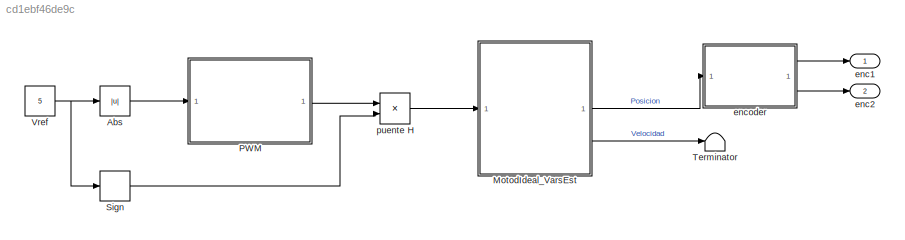
MODEL slx_cd1ebf46de9c
KIND model
CONFIG AbsTol = auto
CONFIG EnableMultiTasking = off
CONFIG FixedStep = auto
CONFIG MaxStep = auto
CONFIG MinStep = auto
CONFIG RelTol = 1e-3
CONFIG SampleTimeConstraint = Unconstrained
CONFIG SolverName = VariableStepAuto
CONFIG StartTime = 0.0
CONFIG StopTime = 10.0
BLOCK [Abs] Abs
  SaturateOnIntegerOverflow = off
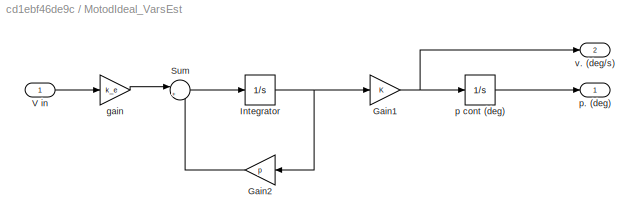
BLOCK [SubSystem] MotodIdeal_VarsEst
BLOCK [Gain] MotodIdeal_VarsEst/Gain1
BLOCK [Gain] MotodIdeal_VarsEst/Gain2
  Gain = p
BLOCK [Integrator] MotodIdeal_VarsEst/Integrator
BLOCK [Sum] MotodIdeal_VarsEst/Sum
  Inputs = |++
BLOCK [Inport] MotodIdeal_VarsEst/V in
BLOCK [Gain] MotodIdeal_VarsEst/gain
  Gain = k_e
BLOCK [Integrator] MotodIdeal_VarsEst/p cont (deg)
BLOCK [Outport] MotodIdeal_VarsEst/p. (deg)
BLOCK [Outport] MotodIdeal_VarsEst/v. (deg//s)
  Port = 2
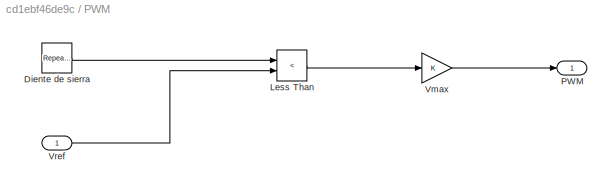
BLOCK [SubSystem] PWM
BLOCK [Reference] PWM/Diente de sierra  REF=simulink/Sources/Repeating
Sequence
  SourceBlock = simulink/Sources/Repeating\nSequence
  SourceType = Repeating table
BLOCK [RelationalOperator] PWM/Less Than
  InputSameDT = off
  Operator = <
  OutDataTypeStr = boolean
  RndMeth = Simplest
BLOCK [Outport] PWM/PWM
BLOCK [Gain] PWM/Vmax
  Gain = K
BLOCK [Inport] PWM/Vref
BLOCK [Signum] Sign
BLOCK [Terminator] Terminator
BLOCK [Constant] Vref
  Value = 5
BLOCK [Outport] enc1
BLOCK [Outport] enc2
  Port = 2
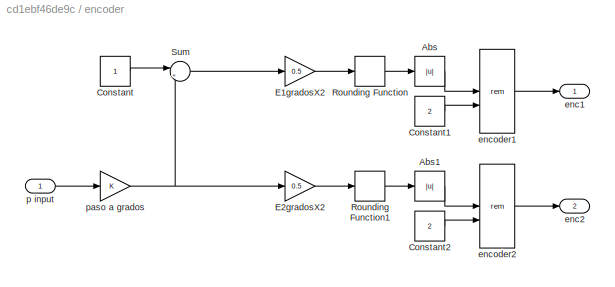
BLOCK [SubSystem] encoder
BLOCK [Abs] encoder/Abs
  SaturateOnIntegerOverflow = off
BLOCK [Abs] encoder/Abs1
  SaturateOnIntegerOverflow = off
BLOCK [Constant] encoder/Constant
BLOCK [Constant] encoder/Constant1
  Value = 2
BLOCK [Constant] encoder/Constant2
  Value = 2
BLOCK [Gain] encoder/E1gradosX2
  Gain = 0.5
BLOCK [Gain] encoder/E2gradosX2
  Gain = 0.5
BLOCK [Rounding] encoder/Rounding Function
BLOCK [Rounding] encoder/Rounding Function1
BLOCK [Sum] encoder/Sum
  Inputs = |++
BLOCK [Outport] encoder/enc1
BLOCK [Outport] encoder/enc2
  Port = 2
BLOCK [Math] encoder/encoder1
  Operator = rem
BLOCK [Math] encoder/encoder2
  Operator = rem
BLOCK [Inport] encoder/p input
BLOCK [Gain] encoder/paso a grados
  Gain = K
BLOCK [Product] puente H
LINE Abs:1 -> PWM:1
NET MotodIdeal_VarsEst/Gain1:1 -> MotodIdeal_VarsEst/p cont (deg):1, MotodIdeal_VarsEst/v. (deg//s):1
LINE MotodIdeal_VarsEst/Gain2:1 -> MotodIdeal_VarsEst/Sum:2
NET MotodIdeal_VarsEst/Integrator:1 -> MotodIdeal_VarsEst/Gain1:1, MotodIdeal_VarsEst/Gain2:1
LINE MotodIdeal_VarsEst/Sum:1 -> MotodIdeal_VarsEst/Integrator:1
LINE MotodIdeal_VarsEst/V in:1 -> MotodIdeal_VarsEst/gain:1
LINE MotodIdeal_VarsEst/gain:1 -> MotodIdeal_VarsEst/Sum:1
LINE MotodIdeal_VarsEst/p cont (deg):1 -> MotodIdeal_VarsEst/p. (deg):1
LINE MotodIdeal_VarsEst:1 -> encoder:1
LINE MotodIdeal_VarsEst:2 -> Terminator:1
LINE PWM/Diente de sierra:1 -> PWM/Less Than:1
LINE PWM/Less Than:1 -> PWM/Vmax:1
LINE PWM/Vmax:1 -> PWM/PWM:1
LINE PWM/Vref:1 -> PWM/Less Than:2
LINE PWM:1 -> puente H:1
LINE Sign:1 -> puente H:2
NET Vref:1 -> Abs:1, Sign:1
LINE encoder/Abs1:1 -> encoder/encoder2:1
LINE encoder/Abs:1 -> encoder/encoder1:1
LINE encoder/Constant1:1 -> encoder/encoder1:2
LINE encoder/Constant2:1 -> encoder/encoder2:2
LINE encoder/Constant:1 -> encoder/Sum:1
LINE encoder/E1gradosX2:1 -> encoder/Rounding Function:1
LINE encoder/E2gradosX2:1 -> encoder/Rounding Function1:1
LINE encoder/Rounding Function1:1 -> encoder/Abs1:1
LINE encoder/Rounding Function:1 -> encoder/Abs:1
LINE encoder/Sum:1 -> encoder/E1gradosX2:1
LINE encoder/encoder1:1 -> encoder/enc1:1
LINE encoder/encoder2:1 -> encoder/enc2:1
LINE encoder/p input:1 -> encoder/paso a grados:1
NET encoder/paso a grados:1 -> encoder/E2gradosX2:1, encoder/Sum:2
LINE encoder:1 -> enc1:1
LINE encoder:2 -> enc2:1
LINE puente H:1 -> MotodIdeal_VarsEst:1
note: NET lines group one-source signal fan-out (src -> all destinations, sorted); 1:1 wires keep LINE
